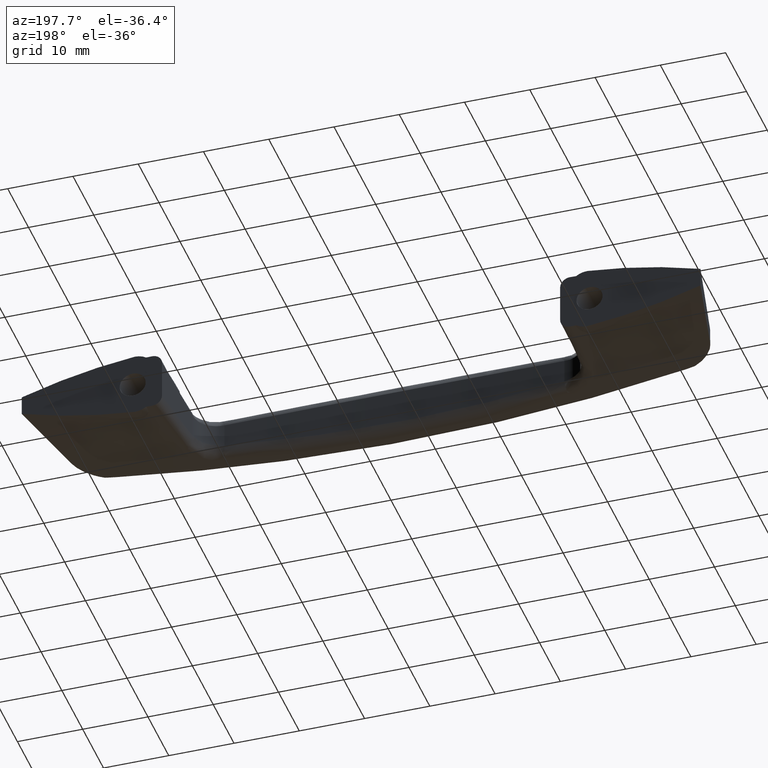
[diagram: clean part render]
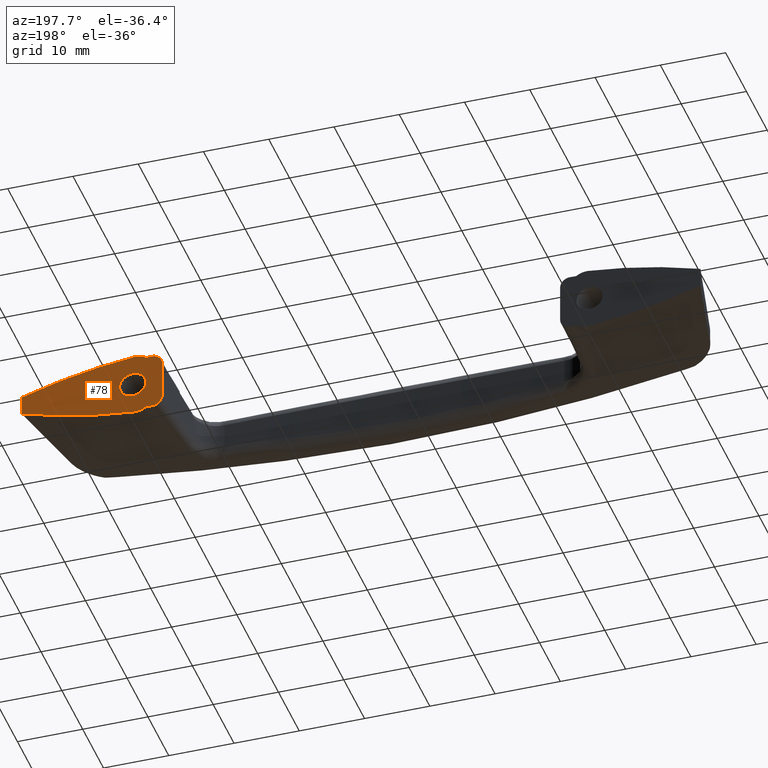
[diagram: same view with one face highlighted and labeled with its STEP entity id]
A machine part, auxiliary view. The second image highlights one B-rep face of the part: STEP entity #78.
In plain terms, the highlighted planar face has unit normal (0, 1, 0).
Its self-contained STEP definition (entity closure, byte-faithful):
#78=ADVANCED_FACE('',(#468,#469),#467,.T.);
#467=PLANE('',#1939);
#468=FACE_OUTER_BOUND('',#1940,.T.);
#469=FACE_BOUND('',#1941,.T.);
#1936=CARTESIAN_POINT('',(6.33499999994E+01,0.00000000000E+00,-5.99999995334E+00));
#1937=DIRECTION('',(0.00000000000E+00,1.00000000000E+00,0.00000000000E+00));
#1938=DIRECTION('',(0.00000000000E+00,0.00000000000E+00,1.00000000000E+00));
#1939=AXIS2_PLACEMENT_3D('',#1936,#1937,#1938);
#1940=EDGE_LOOP('',(#2274,#2275,#2276,#2277,#2278,#2279,#2280,#2281,#2282,#2283,#2284,#2285));
#1941=EDGE_LOOP('',(#2286,#2287,#2288));
#2274=ORIENTED_EDGE('',*,*,#2388,.T.);
#2275=ORIENTED_EDGE('',*,*,#2480,.T.);
#2276=ORIENTED_EDGE('',*,*,#2364,.T.);
#2277=ORIENTED_EDGE('',*,*,#2369,.T.);
#2278=ORIENTED_EDGE('',*,*,#2481,.T.);
#2279=ORIENTED_EDGE('',*,*,#2457,.T.);
#2280=ORIENTED_EDGE('',*,*,#2472,.T.);
#2281=ORIENTED_EDGE('',*,*,#2370,.F.);
#2282=ORIENTED_EDGE('',*,*,#2376,.F.);
#2283=ORIENTED_EDGE('',*,*,#2471,.T.);
#2284=ORIENTED_EDGE('',*,*,#2435,.F.);
#2285=ORIENTED_EDGE('',*,*,#2474,.F.);
#2286=ORIENTED_EDGE('',*,*,#2482,.T.);
#2287=ORIENTED_EDGE('',*,*,#2483,.T.);
#2288=ORIENTED_EDGE('',*,*,#2484,.T.);
#2364=EDGE_CURVE('',#2574,#2575,#2576,.T.);
#2369=EDGE_CURVE('',#2575,#2602,#2609,.T.);
#2370=EDGE_CURVE('',#2615,#2616,#2617,.T.);
#2376=EDGE_CURVE('',#2650,#2615,#2657,.T.);
#2388=EDGE_CURVE('',#2711,#2733,#2740,.T.);
#2435=EDGE_CURVE('',#3053,#3060,#3061,.T.);
#2457=EDGE_CURVE('',#3187,#3202,#3209,.T.);
#2471=EDGE_CURVE('',#2650,#3060,#3295,.T.);
#2472=EDGE_CURVE('',#3202,#2616,#3301,.T.);
#2474=EDGE_CURVE('',#2711,#3053,#3313,.T.);
#2480=EDGE_CURVE('',#2733,#2574,#3352,.T.);
#2481=EDGE_CURVE('',#2602,#3187,#3358,.T.);
#2482=EDGE_CURVE('',#3364,#3365,#3366,.T.);
#2483=EDGE_CURVE('',#3365,#3372,#3373,.T.);
#2484=EDGE_CURVE('',#3372,#3364,#3379,.T.);
#2574=VERTEX_POINT('',#3565);
#2575=VERTEX_POINT('',#3566);
#2576=CIRCLE('',#3570,3.00000000000E+00);
#2602=VERTEX_POINT('',#3639);
#2609=CIRCLE('',#3647,7.99999545776E+01);
#2615=VERTEX_POINT('',#3648);
#2616=VERTEX_POINT('',#3649);
#2617=CIRCLE('',#3653,8.00000000000E+01);
#2650=VERTEX_POINT('',#3697);
#2657=CIRCLE('',#3731,3.00000018795E+00);
#2711=VERTEX_POINT('',#3814);
#2733=VERTEX_POINT('',#3851);
#2740=(BOUNDED_CURVE() B_SPLINE_CURVE(2,(#3858,#3859,#3860,#3861,#3862,#3863,#3864,#3865,#3866),.UNSPECIFIED.,.F.,.F.) B_SPLINE_CURVE_WITH_KNOTS((3,2,2,2,3),(1.11924048339E-04,2.50111924048E-01,5.00111924048E-01,7.50111924048E-01,1.00000000000E+00),.UNSPECIFIED.) CURVE() GEOMETRIC_REPRESENTATION_ITEM() RATIONAL_B_SPLINE_CURVE((1.00000000000E+00,1.00000000000E+00,1.00000000000E+00,1.00000000000E+00,1.00000000000E+00,1.00000000000E+00,1.00000000000E+00,1.00000000000E+00,1.00000000000E+00)) REPRESENTATION_ITEM('') );
#3053=VERTEX_POINT('',#4436);
#3060=VERTEX_POINT('',#4455);
#3061=(BOUNDED_CURVE() B_SPLINE_CURVE(2,(#4456,#4457,#4458,#4459,#4460,#4461,#4462,#4463,#4464),.UNSPECIFIED.,.F.,.F.) B_SPLINE_CURVE_WITH_KNOTS((3,2,2,2,3),(0.00000000000E+00,2.50000000000E-01,5.00000000000E-01,7.50000000000E-01,1.00000000000E+00),.UNSPECIFIED.) CURVE() GEOMETRIC_REPRESENTATION_ITEM() RATIONAL_B_SPLINE_CURVE((1.00000000000E+00,1.00000000000E+00,1.00000000000E+00,1.00000000000E+00,1.00000000000E+00,1.00000000000E+00,1.00000000000E+00,1.00000000000E+00,1.00000000000E+00)) REPRESENTATION_ITEM('') );
#3187=VERTEX_POINT('',#4618);
#3202=VERTEX_POINT('',#4627);
#3209=LINE('',#4632,#4633);
#3295=CIRCLE('',#4788,8.00697039431E+01);
#3301=CIRCLE('',#4792,8.03413378876E+01);
#3313=LINE('',#4796,#4797);
#3352=CIRCLE('',#4825,8.00337973354E+01);
#3358=CIRCLE('',#4829,8.03420398262E+01);
#3364=VERTEX_POINT('',#4830);
#3365=VERTEX_POINT('',#4831);
#3366=CIRCLE('',#4835,2.00000000078E+00);
#3372=VERTEX_POINT('',#4836);
#3373=CIRCLE('',#4840,2.00000000078E+00);
#3379=CIRCLE('',#4844,2.00000000078E+00);
#3565=CARTESIAN_POINT('',(6.79355710774E+01,0.00000000000E+00,4.45605477529E+00));
#3566=CARTESIAN_POINT('',(6.96578169925E+01,0.00000000000E+00,4.99999996112E+00));
#3567=CARTESIAN_POINT('',(6.96583000000E+01,0.00000000000E+00,2.00000000000E+00));
#3568=DIRECTION('',(0.00000000000E+00,1.00000000000E+00,0.00000000000E+00));
#3569=DIRECTION('',(5.74242974200E-01,-0.00000000000E+00,-8.18684925098E-01));
#3570=AXIS2_PLACEMENT_3D('',#3567,#3568,#3569);
#3639=CARTESIAN_POINT('',(8.65773206451E+01,0.00000000000E+00,1.61759566834E+00));
#3644=CARTESIAN_POINT('',(6.25264141102E+01,0.00000000000E+00,-7.46814647929E+01));
#3645=DIRECTION('',(-0.00000000000E+00,1.00000000000E+00,0.00000000000E+00));
#3646=DIRECTION('',(-8.91425866418E-02,-0.00000000000E+00,-9.96018874945E-01));
#3647=AXIS2_PLACEMENT_3D('',#3644,#3645,#3646);
#3648=CARTESIAN_POINT('',(6.96578169925E+01,-6.12303200000E-16,-4.99999996112E+00));
#3649=CARTESIAN_POINT('',(8.65526045174E+01,-1.99051200000E-16,-1.62542994728E+00));
#3650=CARTESIAN_POINT('',(6.25266167691E+01,9.14554700000E-15,7.46815285343E+01));
#3651=DIRECTION('',(-3.44082053427E-31,-1.00000000000E+00,3.35506505230E-30));
#3652=DIRECTION('',(-8.91400027927E-02,3.37238036982E-30,9.96019106193E-01));
#3653=AXIS2_PLACEMENT_3D('',#3650,#3651,#3652);
#3697=CARTESIAN_POINT('',(6.79374437056E+01,0.00000000000E+00,-4.45736725161E+00));
#3728=CARTESIAN_POINT('',(6.96583000025E+01,1.10984259674E-15,-1.99999981206E+00));
#3729=DIRECTION('',(7.27067877777E-20,-1.00000000000E+00,4.51587931437E-16));
#3730=DIRECTION('',(5.73618729706E-01,3.69947509071E-16,8.19122428536E-01));
#3731=AXIS2_PLACEMENT_3D('',#3728,#3729,#3730);
#3814=CARTESIAN_POINT('',(6.55000000000E+01,-4.64133400000E-16,2.96332689311E+00));
#3851=CARTESIAN_POINT('',(6.69823515240E+01,1.77192500000E-17,4.48175850573E+00));
#3858=CARTESIAN_POINT('',(6.55000000000E+01,-4.64133400000E-16,2.96332689311E+00));
#3859=CARTESIAN_POINT('',(6.55001265627E+01,-4.16424100000E-16,3.25683070643E+00));
#3860=CARTESIAN_POINT('',(6.56168034771E+01,-3.52504100000E-16,3.53632263009E+00));
#3861=CARTESIAN_POINT('',(6.57313092758E+01,-2.89773400000E-16,3.81061378815E+00));
#3862=CARTESIAN_POINT('',(6.59361773958E+01,-2.22667600000E-16,4.02361620897E+00));
#3863=CARTESIAN_POINT('',(6.61405327198E+01,-1.55729800000E-16,4.23608547331E+00));
#3864=CARTESIAN_POINT('',(6.64119379350E+01,-9.33398200000E-17,4.35510724506E+00));
#3865=CARTESIAN_POINT('',(6.66859859615E+01,-3.03423700000E-17,4.47528799265E+00));
#3866=CARTESIAN_POINT('',(6.69823515240E+01,1.77192500000E-17,4.48175850573E+00));
#4436=CARTESIAN_POINT('',(6.55000000000E+01,-4.64133400000E-16,-2.96332689311E+00));
#4455=CARTESIAN_POINT('',(6.70461265372E+01,1.10435800000E-17,-4.48179204795E+00));
#4456=CARTESIAN_POINT('',(6.55000000000E+01,-4.64133400000E-16,-2.96332689311E+00));
#4457=CARTESIAN_POINT('',(6.55001298569E+01,-4.17900700000E-16,-3.26411248792E+00));
#4458=CARTESIAN_POINT('',(6.56228954785E+01,-3.54657800000E-16,-3.55073921193E+00));
#4459=CARTESIAN_POINT('',(6.57427428816E+01,-2.92918300000E-16,-3.83055263250E+00));
#4460=CARTESIAN_POINT('',(6.59579962116E+01,-2.26158700000E-16,-4.04589258774E+00));
#4461=CARTESIAN_POINT('',(6.61706509744E+01,-1.60205000000E-16,-4.25863293005E+00));
#4462=CARTESIAN_POINT('',(6.64550190608E+01,-9.81047000000E-17,-4.37327000027E+00));
#4463=CARTESIAN_POINT('',(6.67405536960E+01,-3.57496300000E-17,-4.48837734030E+00));
#4464=CARTESIAN_POINT('',(6.70461265372E+01,1.10435800000E-17,-4.48179204795E+00));
#4618=CARTESIAN_POINT('',(8.70000000000E+01,1.26550300000E-13,1.49972784205E+00));
#4627=CARTESIAN_POINT('',(8.70000000056E+01,-9.23879100000E-10,-1.50072784168E+00));
#4632=CARTESIAN_POINT('',(8.70000000000E+01,1.26550300000E-13,1.49972784205E+00));
#4633=VECTOR('',#4634,3.00045568373E+00);
#4634=DIRECTION('',(1.87335032512E-09,-3.07955106723E-10,-1.00000000000E+00));
#4785=CARTESIAN_POINT('',(6.52984895112E+01,5.59762183755E-18,7.55688372710E+01));
#4786=DIRECTION('',(1.23809086396E-17,1.00000000000E+00,3.38327040604E-19));
#4787=DIRECTION('',(-3.29582109637E-02,6.99093609929E-20,9.99456730594E-01));
#4788=AXIS2_PLACEMENT_3D('',#4785,#4786,#4787);
#4789=CARTESIAN_POINT('',(6.52051903326E+01,-4.66950039809E-10,7.58279010410E+01));
#4790=DIRECTION('',(1.91613390141E-09,1.00000000000E+00,5.34146864179E-10));
#4791=DIRECTION('',(-2.71277654145E-01,5.68734691512E-12,9.62501134733E-01));
#4792=AXIS2_PLACEMENT_3D('',#4789,#4790,#4791);
#4796=CARTESIAN_POINT('',(6.55000000000E+01,-4.64133400000E-16,2.96332689311E+00));
#4797=VECTOR('',#4798,5.92665378621E+00);
#4798=DIRECTION('',(0.00000000000E+00,0.00000000000E+00,-1.00000000000E+00));
#4822=CARTESIAN_POINT('',(6.53016585489E+01,8.79835617407E-18,-7.55343897835E+01));
#4823=DIRECTION('',(1.85753172996E-17,1.00000000000E+00,-5.01652478655E-19));
#4824=DIRECTION('',(-2.09997904768E-02,-1.11464082962E-19,-9.99779480085E-01));
#4825=AXIS2_PLACEMENT_3D('',#4822,#4823,#4824);
#4826=CARTESIAN_POINT('',(6.52080361595E+01,6.68486464263E-14,-7.58304323506E+01));
#4827=DIRECTION('',(-2.77786107040E-13,1.00000000000E+00,7.75092555284E-14));
#4828=DIRECTION('',(-2.65978864014E-01,8.32050649584E-16,-9.63978860711E-01));
#4829=AXIS2_PLACEMENT_3D('',#4826,#4827,#4828);
#4830=CARTESIAN_POINT('',(7.00000000000E+01,7.22847784292E-16,-2.00000000157E+00));
#4831=CARTESIAN_POINT('',(7.19938346690E+01,3.89780883774E-16,-1.56918191611E-01));
#4832=CARTESIAN_POINT('',(7.00000000007E+01,3.61423892146E-16,-7.83873410626E-10));
#4833=DIRECTION('',(0.00000000000E+00,-1.00000000000E+00,-1.80711946002E-16));
#4834=DIRECTION('',(-3.62293306608E-10,1.80711946002E-16,-1.00000000000E+00));
#4835=AXIS2_PLACEMENT_3D('',#4832,#4833,#4834);
#4836=CARTESIAN_POINT('',(6.80061729350E+01,3.33049449199E-16,1.57014759861E-01));
#4837=CARTESIAN_POINT('',(7.00000000007E+01,3.61423892146E-16,-7.83873410626E-10));
#4838=DIRECTION('',(0.00000000000E+00,-1.00000000000E+00,-1.80711946002E-16));
#4839=DIRECTION('',(-3.62293306608E-10,1.80711946002E-16,-1.00000000000E+00));
#4840=AXIS2_PLACEMENT_3D('',#4837,#4838,#4839);
#4841=CARTESIAN_POINT('',(7.00000000007E+01,3.61423892146E-16,-7.83873410626E-10));
#4842=DIRECTION('',(0.00000000000E+00,-1.00000000000E+00,-1.80711946002E-16));
#4843=DIRECTION('',(-3.62293306608E-10,1.80711946002E-16,-1.00000000000E+00));
#4844=AXIS2_PLACEMENT_3D('',#4841,#4842,#4843);